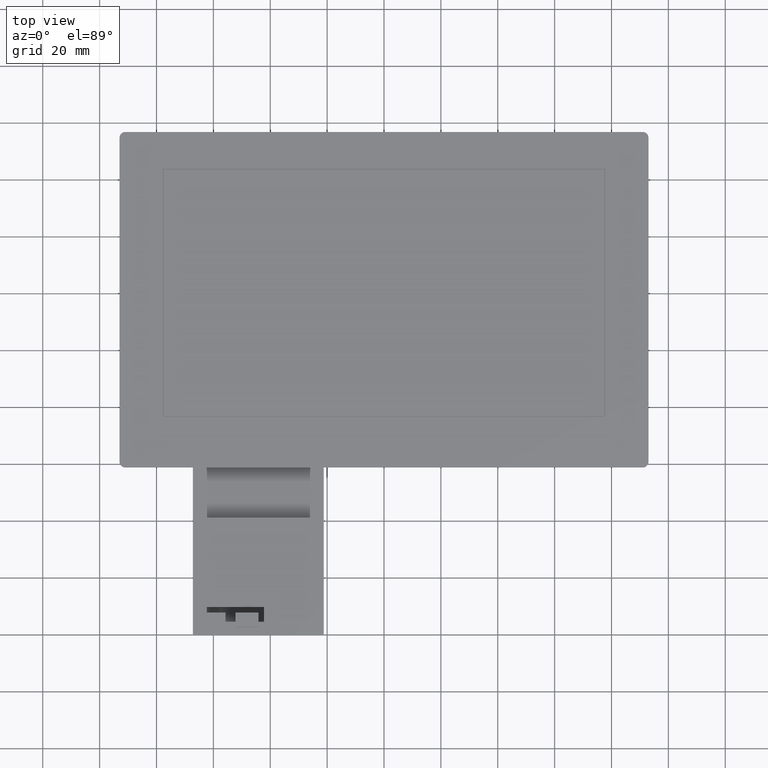
[diagram: clean part render]
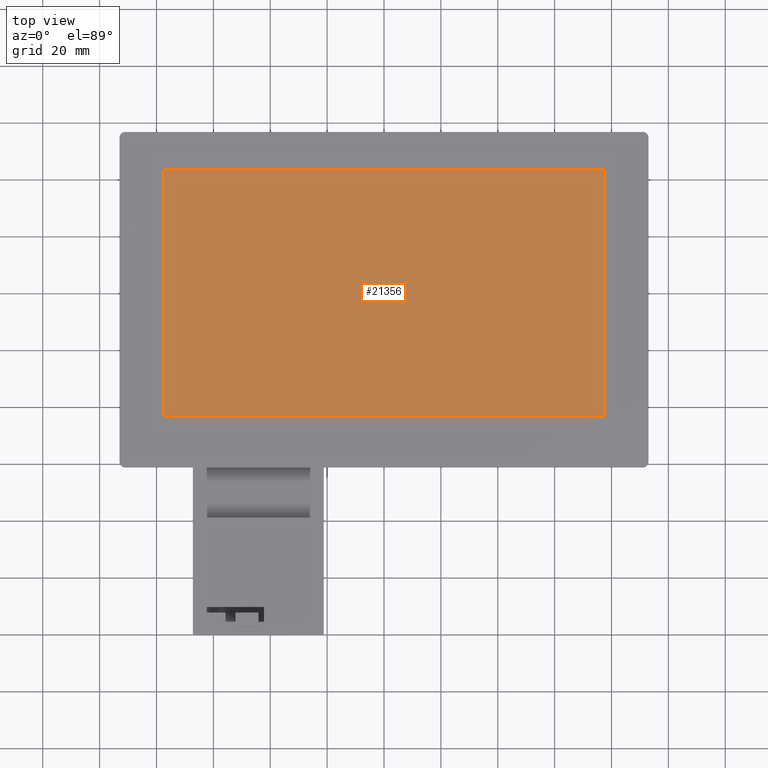
[diagram: same view with one face highlighted and labeled with its STEP entity id]
A machine part, top view. The second image highlights one B-rep face of the part: STEP entity #21356.
In plain terms, the highlighted planar face has unit normal (0, 0, 1).
Its self-contained STEP definition (entity closure, byte-faithful):
#853=FACE_OUTER_BOUND('',#2002,.T.);
#2002=EDGE_LOOP('',(#14297,#14298,#14299,#14300));
#3309=LINE('',#30369,#6054);
#3313=LINE('',#30377,#6058);
#3316=LINE('',#30383,#6061);
#3319=LINE('',#30388,#6064);
#6054=VECTOR('',#24364,10.);
#6058=VECTOR('',#24370,10.);
#6061=VECTOR('',#24375,10.);
#6064=VECTOR('',#24380,10.);
#8780=VERTEX_POINT('',#30367);
#8781=VERTEX_POINT('',#30368);
#8784=VERTEX_POINT('',#30376);
#8786=VERTEX_POINT('',#30382);
#10921=EDGE_CURVE('',#8780,#8781,#3309,.T.);
#10925=EDGE_CURVE('',#8784,#8780,#3313,.T.);
#10928=EDGE_CURVE('',#8786,#8784,#3316,.T.);
#10931=EDGE_CURVE('',#8781,#8786,#3319,.T.);
#14297=ORIENTED_EDGE('',*,*,#10921,.T.);
#14298=ORIENTED_EDGE('',*,*,#10931,.T.);
#14299=ORIENTED_EDGE('',*,*,#10928,.T.);
#14300=ORIENTED_EDGE('',*,*,#10925,.T.);
#20433=PLANE('',#22547);
#21356=ADVANCED_FACE('',(#853),#20433,.T.);
#22547=AXIS2_PLACEMENT_3D('',#30432,#24418,#24419);
#24364=DIRECTION('',(0.,1.,0.));
#24370=DIRECTION('',(1.,1.14744321387523E-16,0.));
#24375=DIRECTION('',(1.53983775953558E-16,-1.,0.));
#24380=DIRECTION('',(-1.,0.,0.));
#24418=DIRECTION('center_axis',(0.,0.,1.));
#24419=DIRECTION('ref_axis',(1.,0.,0.));
#30367=CARTESIAN_POINT('',(77.405,-43.26,0.));
#30368=CARTESIAN_POINT('',(77.405,43.26,0.));
#30369=CARTESIAN_POINT('',(77.405,-52.31,0.));
#30376=CARTESIAN_POINT('',(-77.405,-43.26,0.));
#30377=CARTESIAN_POINT('',(-38.705,-43.26,0.));
#30382=CARTESIAN_POINT('',(-77.405,43.26,0.));
#30383=CARTESIAN_POINT('',(-77.405,-9.05,0.));
#30388=CARTESIAN_POINT('',(38.7,43.26,0.));
#30432=CARTESIAN_POINT('Origin',(-0.00500000000000889,-61.36,0.));